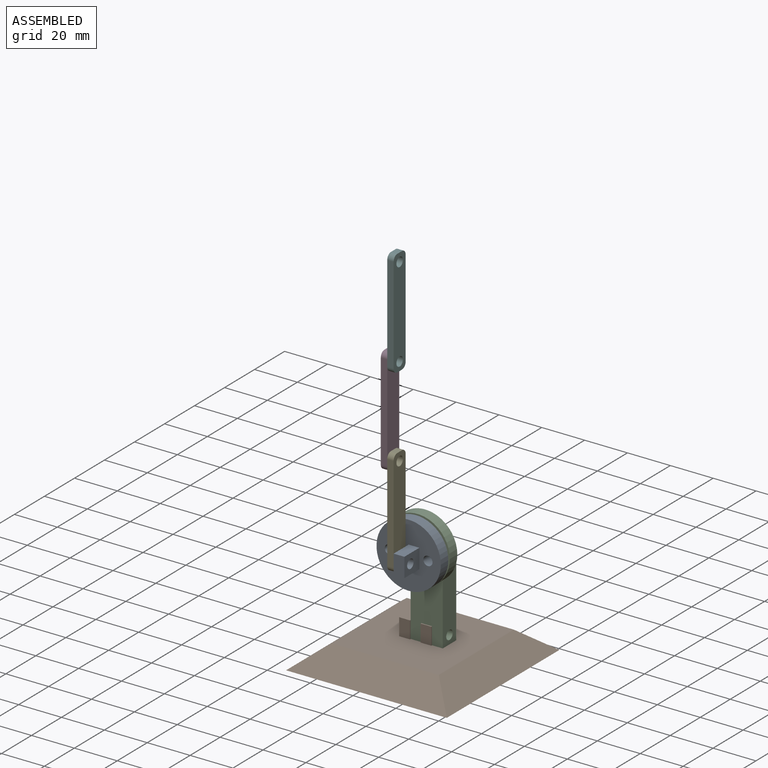
[diagram: assembled view]
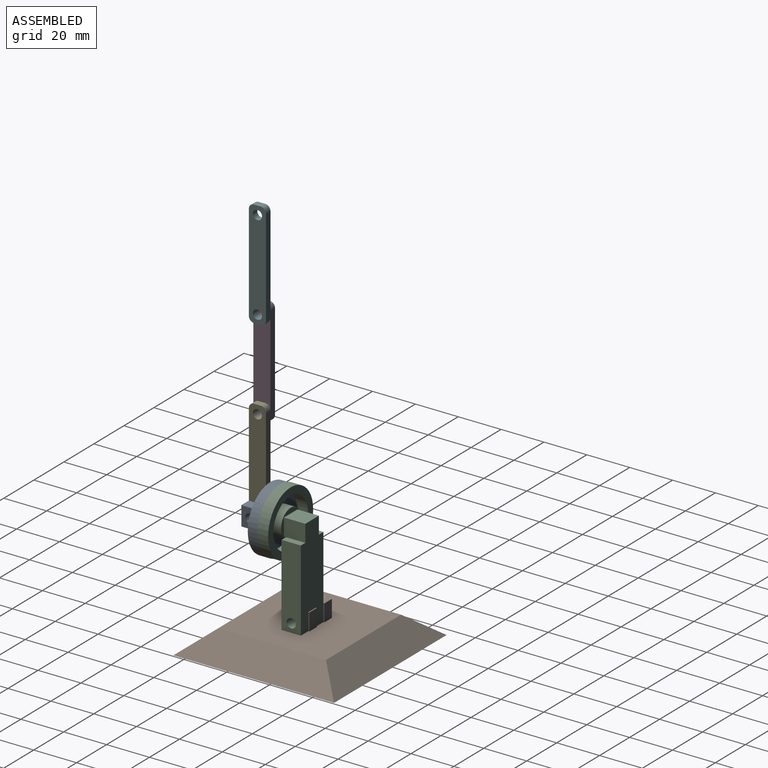
[diagram: assembled view, second angle]
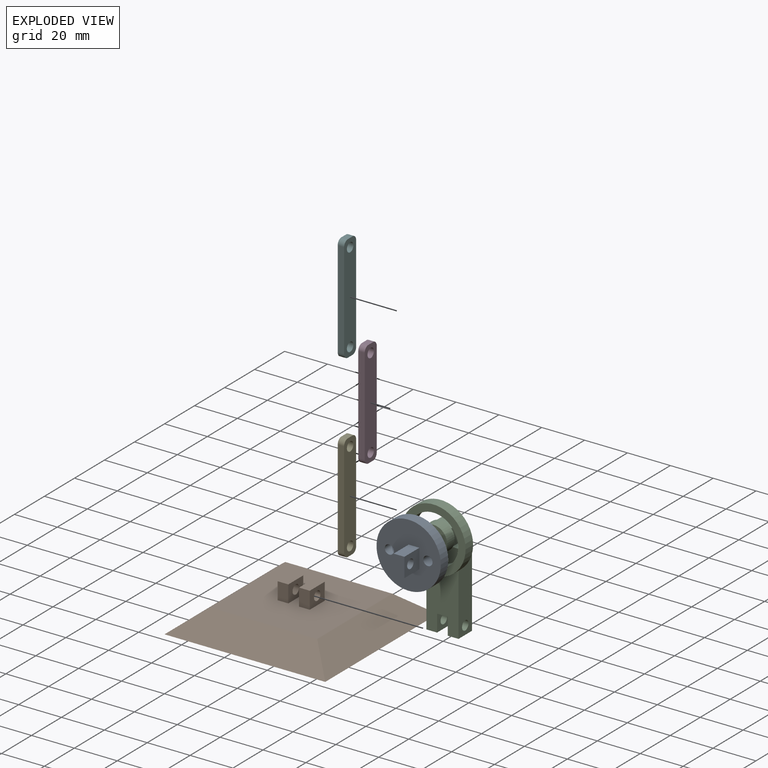
[diagram: exploded view]
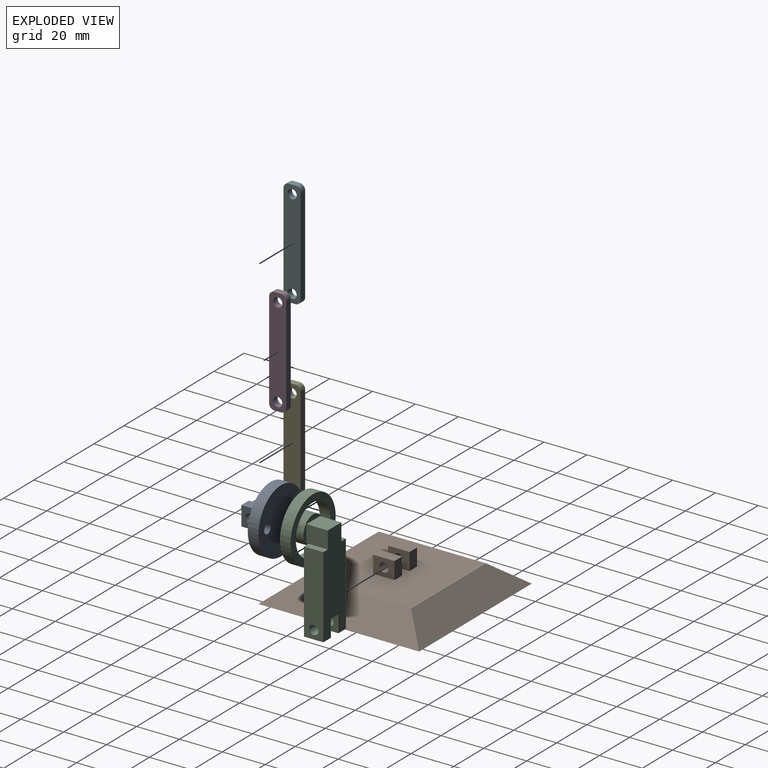
[diagram: exploded view, second angle]
ASSEMBLY  parts=6 mates=5
PART A: 11 faces, bbox 30x30x15 mm
  f0: plane 9x5mm, normal (0,0,-1), area 45mm2, adj f6,f7,f8,f9
  f1: cylinder r=2.15mm len=5mm, axis (0,0,-1), area 67.5mm2, adj f4,f5
  f2: cylinder r=2.15mm len=5mm, axis (0,0,-1), area 67.5mm2, adj f4,f5
  f3: cylinder r=15mm len=30mm, axis (0,0,-1), area 471.2mm2, adj f4,f5
  f4: plane 30x30mm, normal (0,0,1), area 677.8mm2, adj f1,f2,f3
  f5: plane 30x30mm, normal (0,0,-1), area 632.8mm2, adj f1,f2,f3,f6,f7,f8,f9
  f6: plane 10x9mm, normal (1,0,0), area 75.5mm2, adj f0,f5,f7,f8,f10
  f7: plane 10x5mm, normal (0,-1,0), area 50mm2, adj f0,f5,f6,f9
  f8: plane 10x5mm, normal (0,1,0), area 50mm2, adj f0,f5,f6,f9
  f9: plane 10x9mm, normal (-1,0,0), area 75.5mm2, adj f0,f5,f7,f8,f10
  f10: cylinder r=2.15mm len=5mm, axis (1,0,0), area 67.5mm2, adj f6,f9
PART B: 18 faces, bbox 75x75x18 mm
  f0: plane 50x50mm, normal (0,0,1), area 2400mm2, adj f2,f3,f4,f5,f6,f7,f8,f9
  f1: plane 75x75mm, normal (0,0,-1), area 5625mm2, adj f2,f3,f4,f5
  f2: plane 75x12.5mm, normal (0,0.62,0.78), area 1000.5mm2, adj f0,f1,f3,f5
  f3: plane 75x12.5mm, normal (-0.62,0,0.78), area 1000.5mm2, adj f0,f1,f2,f4
  f4: plane 75x12.5mm, normal (0,-0.62,0.78), area 1000.5mm2, adj f0,f1,f3,f5
  f5: plane 75x12.5mm, normal (0.62,0,0.78), area 1000.5mm2, adj f0,f1,f2,f4
  f6: plane 10x8mm, normal (1,0,0), area 65.5mm2, adj f0,f7,f9,f10,f17
  f7: plane 8x5mm, normal (0,1,0), area 40mm2, adj f0,f6,f8,f10
  f8: plane 10x8mm, normal (-1,0,0), area 65.5mm2, adj f0,f7,f9,f10,f17
  f9: plane 8x5mm, normal (0,-1,0), area 40mm2, adj f0,f6,f8,f10
  f10: plane 10x5mm, normal (0,0,1), area 50mm2, adj f6,f7,f8,f9
  f11: plane 10x8mm, normal (1,0,0), area 65.5mm2, adj f0,f12,f14,f15,f16
  f12: plane 8x5mm, normal (0,1,0), area 40mm2, adj f0,f11,f13,f15
  f13: plane 10x8mm, normal (-1,0,0), area 65.5mm2, adj f0,f12,f14,f15,f16
  f14: plane 8x5mm, normal (0,-1,0), area 40mm2, adj f0,f11,f13,f15
  f15: plane 10x5mm, normal (0,0,1), area 50mm2, adj f11,f12,f13,f14
  f16: cylinder r=2.15mm len=5mm, axis (-1,0,0), area 67.5mm2, adj f11,f13
  f17: cylinder r=2.15mm len=5mm, axis (-1,0,0), area 67.5mm2, adj f6,f8
PART C: 24 faces, bbox 30x57x15 mm
  f0: plane 9x5mm, normal (0,-1,0), area 45mm2, adj f12,f16,f18,f20
  f1: plane 9x1mm, normal (0,-1,0), area 9mm2, adj f2,f9,f11,f16
  f2: plane 30x30mm, normal (0,0,1), area 399.6mm2, adj f1,f3,f4,f5,f6,f7,f9,f10
  f3: cylinder r=2.5mm len=5mm, axis (0,0,-1), area 39.3mm2, adj f2,f4,f6,f8
  f4: cylinder r=11.53mm len=23.05mm, axis (0,0,-1), area 271.8mm2, adj f2,f3,f5,f8
  f5: cylinder r=2.5mm len=5mm, axis (0,0,-1), area 39.1mm2, adj f2,f4,f6,f8
  f6: cylinder r=6.46mm len=12.93mm, axis (0,0,-1), area 151.9mm2, adj f2,f3,f5,f8
  f7: cylinder r=15mm len=30mm, axis (0,0,-1), area 471.2mm2, adj f2,f8
  f8: plane 30x30mm, normal (0,0,-1), area 471.6mm2, adj f3,f4,f5,f6,f7
  f9: plane 10x8mm, normal (1,0,0), area 80mm2, adj f1,f2,f10,f12,f17
  f10: plane 10x9mm, normal (0,1,0), area 90mm2, adj f2,f9,f11,f12
  f11: plane 10x8mm, normal (-1,0,0), area 80mm2, adj f1,f2,f10,f12,f13
  f12: plane 46x15mm, normal (0,0,1), area 602mm2, adj f0,f9,f10,f11,f13,f14,f15,f17
  f13: plane 9x3mm, normal (0,1,0), area 27mm2, adj f11,f12,f15,f16
  f14: plane 38x9mm, normal (1,0,0), area 327.5mm2, adj f12,f16,f17,f21,f22
  f15: plane 38x9mm, normal (-1,0,0), area 327.5mm2, adj f12,f13,f16,f19,f23
  f16: plane 38x15mm, normal (0,0,-1), area 530mm2, adj f0,f1,f13,f14,f15,f17,f18,f19
  f17: plane 9x3mm, normal (0,1,0), area 27mm2, adj f9,f12,f14,f16
  f18: plane 9x8mm, normal (1,0,0), area 57.5mm2, adj f0,f12,f16,f19,f23
  f19: plane 9x5mm, normal (0,-1,0), area 45mm2, adj f12,f15,f16,f18
  f20: plane 9x8mm, normal (-1,0,0), area 57.5mm2, adj f0,f12,f16,f21,f22
  f21: plane 9x5mm, normal (0,-1,0), area 45mm2, adj f12,f14,f16,f20
  f22: cylinder r=2.15mm len=5mm, axis (-1,0,0), area 67.5mm2, adj f14,f20
  f23: cylinder r=2.15mm len=5mm, axis (-1,0,0), area 67.5mm2, adj f15,f18
PART D: 12 faces, bbox 8x50x3 mm
  f0: plane 45.12x3mm, normal (1,0,0), area 135.3mm2, adj f1,f9,f10,f11
  f1: cylinder r=2.44mm len=3mm, axis (0,0,-1), area 11.5mm2, adj f0,f2,f10,f11
  f2: plane 3.12x3mm, normal (0,1,0), area 9.3mm2, adj f1,f3,f10,f11
  f3: cylinder r=2.44mm len=3mm, axis (0,0,-1), area 11.5mm2, adj f2,f4,f10,f11
  f4: plane 45.12x3mm, normal (-1,0,0), area 135.3mm2, adj f3,f5,f10,f11
  f5: cylinder r=2.44mm len=3mm, axis (0,0,-1), area 11.5mm2, adj f4,f6,f10,f11
  f6: plane 3.12x3mm, normal (0,-1,0), area 9.3mm2, adj f5,f9,f10,f11
  f7: cylinder r=2.15mm len=4.3mm, axis (0,0,-1), area 40.5mm2, adj f10,f11
  f8: cylinder r=2.15mm len=4.3mm, axis (0,0,-1), area 40.5mm2, adj f10,f11
  f9: cylinder r=2.44mm len=3mm, axis (0,0,-1), area 11.5mm2, adj f0,f6,f10,f11
  f10: plane 50x8mm, normal (0,0,1), area 365.8mm2, adj f0,f1,f2,f3,f4,f5,f6,f7
  f11: plane 50x8mm, normal (0,0,-1), area 365.8mm2, adj f0,f1,f2,f3,f4,f5,f6,f7
PART E: same geometry as D
PART F: same geometry as D
PLACE A rot(axis=(-1,0,0),90deg) t=(211.62,-39.5,577.11)mm
PLACE B t=(207.32,-24,525.81)mm
PLACE C rot(axis=(0,0.71,0.71),180deg) t=(212.32,-34.5,577.81)mm
PLACE D rot(axis=(0.58,-0.58,-0.58),120deg) t=(208.62,-45.5,640.11)mm
PLACE E rot(axis=(0.58,0.58,0.58),120deg) t=(208.62,-45.5,598.11)mm
PLACE F rot(axis=(0.58,0.58,0.58),120deg) t=(208.62,-45.5,682.11)mm
MATE revolute D.f7 <-> E.f8  axis (1,0,0) through (208.62,-45.5,619.11)mm
MATE revolute A.f3 <-> C.f8  axis (0,1,0) through (211.62,-34.5,577.11)mm
MATE revolute C.f22 <-> B.f16  axis (1,0,0) through (209.82,-24,539.81)mm
MATE revolute F.f7 <-> D.f8  axis (-1,0,0) through (208.62,-45.5,661.11)mm
MATE revolute E.f7 <-> A.f10  axis (1,0,0) through (211.62,-45.5,577.11)mm
